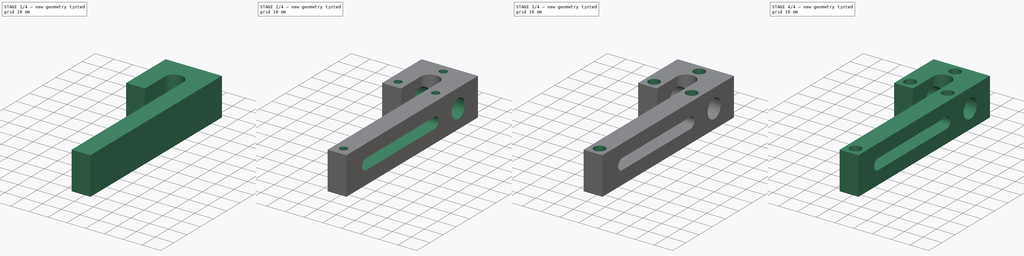
[diagram: build sequence overview — one tinted view per stage of 4, left to right]
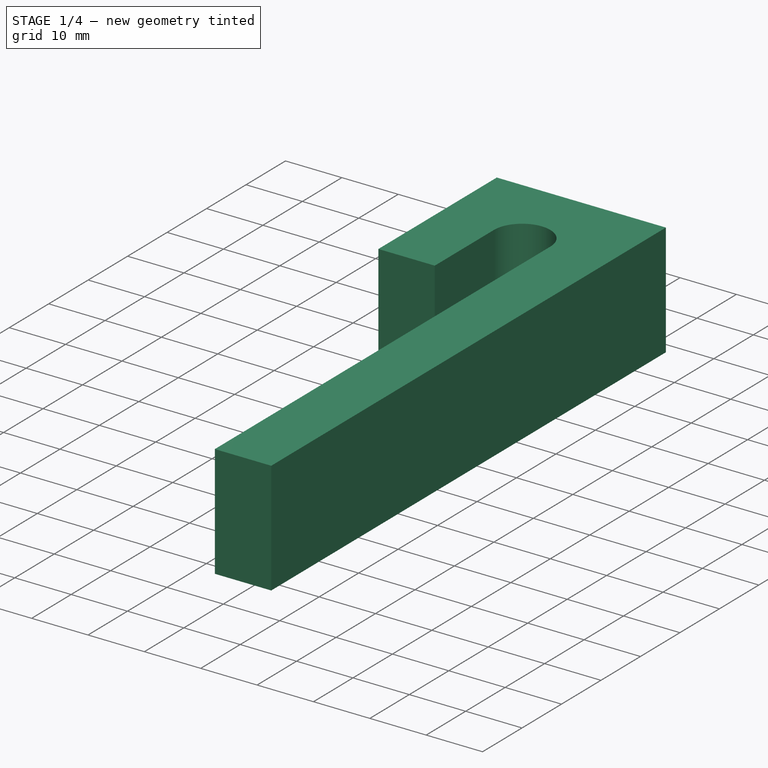
[diagram: stage 1 of 4 — iso view after this stage's code; geometry added in this stage tinted green]
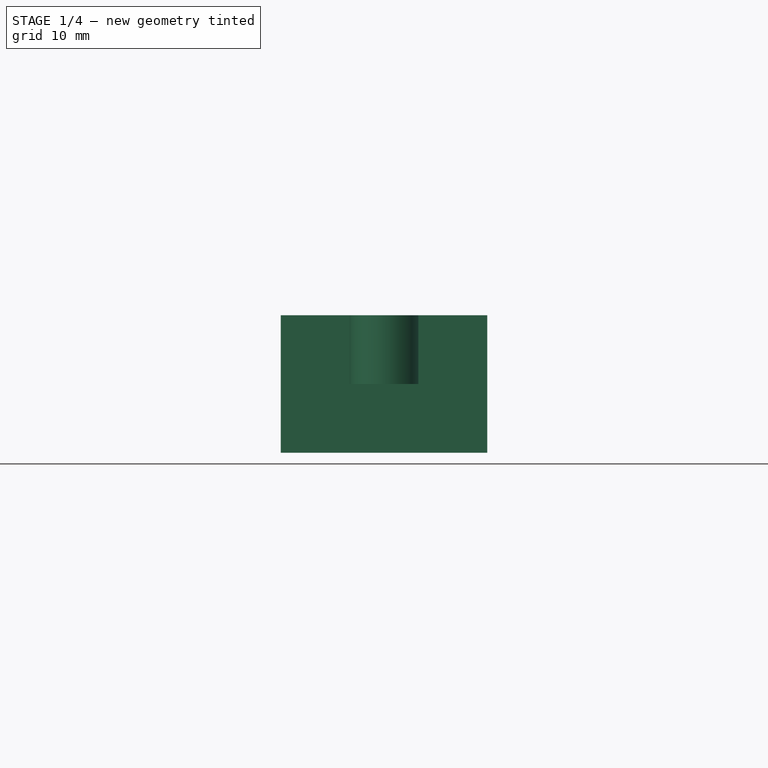
[diagram: stage 1 of 4 — front view after this stage's code; geometry added in this stage tinted green]
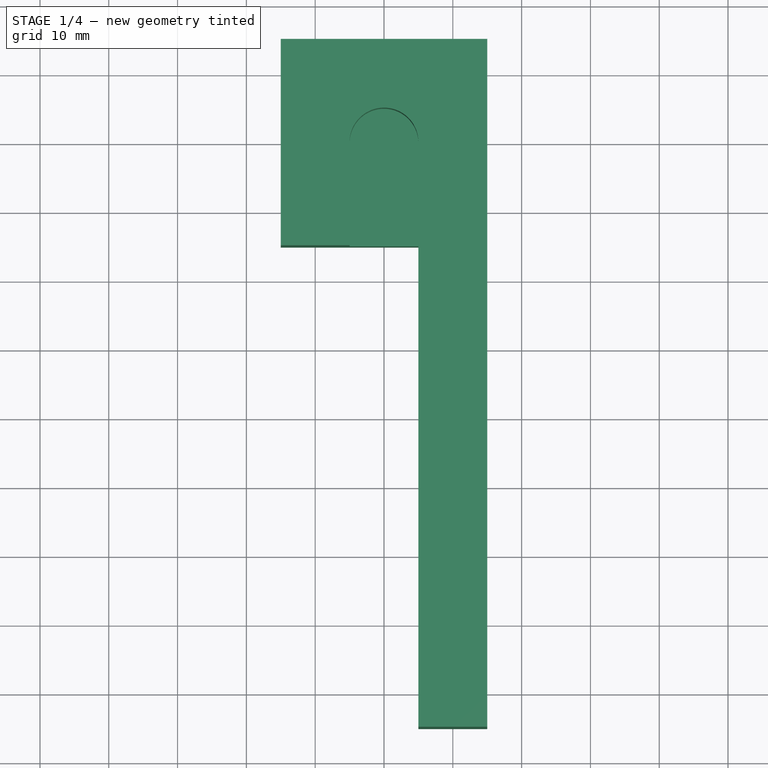
[diagram: stage 1 of 4 — top view after this stage's code; geometry added in this stage tinted green]
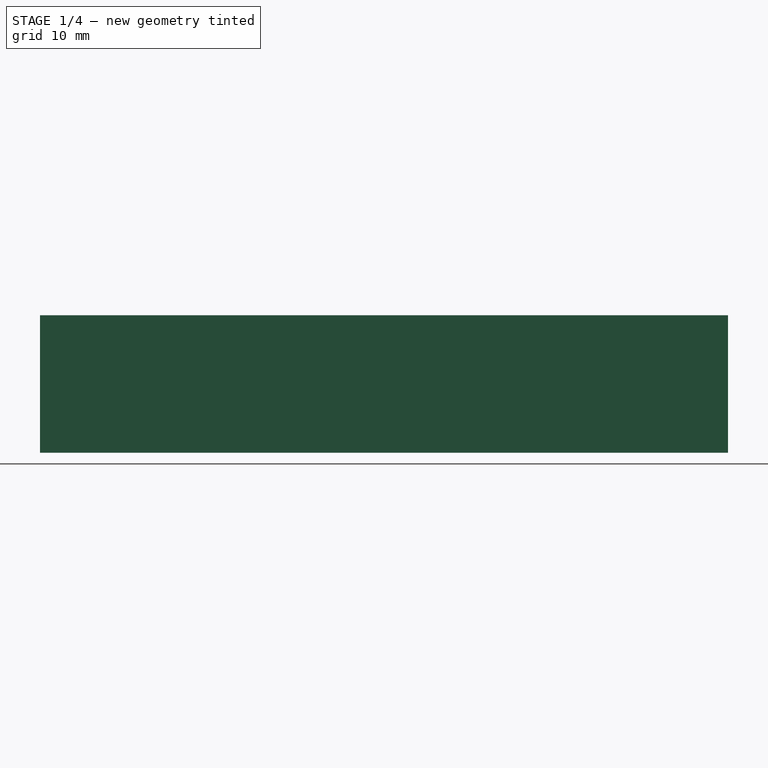
[diagram: stage 1 of 4 — right view after this stage's code; geometry added in this stage tinted green]
FCSTD DOCUMENT  (FreeCAD 0.21R33694 (Git))
Label: gamma-match-node
License: All rights reserved
LicenseURL: https://en.wikipedia.org/wiki/All_rights_reserved
objects: Sketcher::SketchObject×7, PartDesign::Pocket×5, PartDesign::Plane×3, Part::FeaturePython×3, PartDesign::Pad×1, PartDesign::Body×1, App::DocumentObjectGroup×1
note: 26 computed .brp shape members not serialized (recipe doc carries the construction recipe); baked Part::Feature solids carry a one-line shape summary decoded from their .brp

FEATURE [Sketcher::SketchObject] Sketch  label="Master XY"
  FullyConstrained = true
  MapMode = 5
  Support = -> [XY_Plane]
  sketch-geometry (19):
    g0: LineSegment StartX=-15 StartY=-15 StartZ=0 EndX=-15 EndY=15 EndZ=0
    g1: LineSegment StartX=-15 StartY=15 StartZ=0 EndX=15 EndY=15 EndZ=0
    g2: LineSegment StartX=15 StartY=15 StartZ=0 EndX=15 EndY=-85 EndZ=0
    g3: LineSegment StartX=15 StartY=-85 StartZ=0 EndX=5 EndY=-85 EndZ=0
    g4: LineSegment StartX=5 StartY=-85 StartZ=0 EndX=5 EndY=-15 EndZ=0
    g5: LineSegment StartX=-100 StartY=5 StartZ=0 EndX=100 EndY=5 EndZ=0
    g6: LineSegment StartX=100 StartY=5 StartZ=0 EndX=100 EndY=-5 EndZ=0
    g7: LineSegment StartX=100 StartY=-5 StartZ=0 EndX=-100 EndY=-5 EndZ=0
    g8: LineSegment StartX=-100 StartY=-5 StartZ=0 EndX=-100 EndY=5 EndZ=0
    g9: Circle CenterX=0 CenterY=10 CenterZ=0 NormalX=0 NormalY=0 NormalZ=1 AngleXU=0 Radius=2
    g10: Circle CenterX=10 CenterY=-10 CenterZ=0 NormalX=0 NormalY=0 NormalZ=1 AngleXU=0 Radius=2
    g11: ArcOfCircle CenterX=-2.301e-13 CenterY=-2.306e-13 CenterZ=0 NormalX=0 NormalY=0 NormalZ=1 AngleXU=0 Radius=5 StartAngle=4.61e-14 EndAngle=3.14159
    g12: LineSegment StartX=-5 StartY=9e-16 StartZ=0 EndX=-5 EndY=-15 EndZ=0
    g13: LineSegment StartX=5 StartY=-1e-16 StartZ=0 EndX=5 EndY=-15 EndZ=0
    g14: Circle CenterX=-10 CenterY=-10 CenterZ=0 NormalX=0 NormalY=0 NormalZ=1 AngleXU=0 Radius=2
    g15: LineSegment StartX=-15 StartY=-15 StartZ=0 EndX=-5 EndY=-15 EndZ=0
    g16: LineSegment StartX=-5 StartY=-15 StartZ=0 EndX=5 EndY=-15 EndZ=0
    g17: LineSegment StartX=5 StartY=-15 StartZ=0 EndX=5 EndY=-15 EndZ=0
    g18: Circle CenterX=10 CenterY=-80 CenterZ=0 NormalX=0 NormalY=0 NormalZ=1 AngleXU=0 Radius=2
  constraints (53):
    c: Coincident(g0,g1)
    c: Coincident(g1,g2)
    c: Vertical(g2)
    c: Coincident(g2,g3)
    c: Horizontal(g3)
    c: Coincident(g3,g4)
    c: Vertical(g4)
    c: Symmetric(g0,g0,g-1)
    c: Symmetric(g0,g1,g-2)
    c: Coincident(g5,g6)
    c: Coincident(g6,g7)
    c: Coincident(g7,g8)
    c: Coincident(g8,g5)
    c: Horizontal(g5)
    c: Horizontal(g7)
    c: Vertical(g6)
    c: Vertical(g8)
    c: DistanceY(g6,g6) = 10
    c: Symmetric(g5,g7,g-1)
    c: DistanceX(g5,g5) = 200
    c: DistanceX(g3,g3) = 10
    c: DistanceY(g4,g4) = 70
    c: Diameter(g9) = 4
    c: DistanceY(g9,g0) = 5
    c: DistanceY(g5,g9) = 5
    c: Equal(g10,g9)
    c: DistanceY(g4,g10) = 5
    c: DistanceX(g10,g1) = 5
    c: Coincident(g11,g-1)
    c: PointOnObject(g11,g-1)
    c: PointOnObject(g11,g-1)
    c: Tangent(g11,g5)
    c: Coincident(g12,g11)
    c: Vertical(g12)
    c: Coincident(g13,g11)
    c: Vertical(g13)
    c: PointOnObject(g9,g-2)
    c: Equal(g14,g9)
    c: DistanceX(g0,g14) = 5
    c: DistanceX(g14,g12) = 5
    c: Coincident(g15,g0)
    c: Coincident(g15,g12)
    c: Horizontal(g15)
    c: Coincident(g16,g12)
    c: Coincident(g16,g13)
    c: Horizontal(g16)
    c: Coincident(g17,g4)
    c: Coincident(g17,g13)
    c: Horizontal(g17)
    c: Equal(g18,g9)
    c: DistanceY(g3,g18) = 5
    c: Vertical(g18,g10)
    c: DistanceY(g14,g7) = 5
FEATURE [Sketcher::SketchObject] Sketch001
  ExternalGeometry = -> [Sketch]
  FullyConstrained = true
  MapMode = 5
  Support = -> [XY_Plane]
  sketch-geometry (7):
    g0: LineSegment StartX=-15 StartY=15 StartZ=0 EndX=15 EndY=15 EndZ=0
    g1: LineSegment StartX=15 StartY=15 StartZ=0 EndX=15 EndY=-85 EndZ=0
    g2: LineSegment StartX=15 StartY=-85 StartZ=0 EndX=5 EndY=-85 EndZ=0
    g3: LineSegment StartX=5 StartY=-85 StartZ=0 EndX=5 EndY=-15 EndZ=0
    g4: LineSegment StartX=5 StartY=-15 StartZ=0 EndX=-5 EndY=-15 EndZ=0
    g5: LineSegment StartX=-15 StartY=15 StartZ=0 EndX=-15 EndY=-15 EndZ=0
    g6: LineSegment StartX=-15 StartY=-15 StartZ=0 EndX=-5 EndY=-15 EndZ=0
  constraints (14):
    c: Coincident(g-7,g0)
    c: Coincident(g0,g-7)
    c: Coincident(g0,g1)
    c: Coincident(g1,g-6)
    c: Coincident(g1,g2)
    c: Coincident(g2,g-5)
    c: Coincident(g2,g3)
    c: Coincident(g3,g-8)
    c: Coincident(g3,g4)
    c: Coincident(g4,g-9)
    c: Coincident(g0,g5)
    c: Coincident(g5,g-12)
    c: Coincident(g5,g6)
    c: Coincident(g6,g4)
FEATURE [Sketcher::SketchObject] Sketch002
  ExternalGeometry = -> [Sketch]
  FullyConstrained = true
  MapMode = 5
  Support = -> [XY_Plane]
  sketch-geometry (4):
    g0: LineSegment StartX=-5 StartY=9e-16 StartZ=0 EndX=-5 EndY=-15 EndZ=0
    g1: LineSegment StartX=5 StartY=-15 StartZ=0 EndX=-5 EndY=-15 EndZ=0
    g2: LineSegment StartX=5 StartY=-15 StartZ=0 EndX=5 EndY=0 EndZ=0
    g3: ArcOfCircle CenterX=-2.301e-13 CenterY=-2.306e-13 CenterZ=0 NormalX=0 NormalY=0 NormalZ=1 AngleXU=0 Radius=5 StartAngle=4.61e-14 EndAngle=3.14159
  constraints (9):
    c: Coincident(g0,g-9)
    c: Coincident(g0,g-10)
    c: Coincident(g1,g-10)
    c: Coincident(g1,g0)
    c: Coincident(g2,g1)
    c: Coincident(g2,g-8)
    c: Coincident(g3,g-7)
    c: Coincident(g3,g0)
    c: Coincident(g3,g2)
FEATURE [Sketcher::SketchObject] Sketch003
  ExternalGeometry = -> [Sketch]
  FullyConstrained = true
  MapMode = 5
  Placement = pos=(0,0,0) rot=(0.57735,0.57735,0.57735;2.0944rad)
  Support = -> [YZ_Plane]
  sketch-geometry (6):
    g0: Circle CenterX=0 CenterY=0 CenterZ=0 NormalX=0 NormalY=0 NormalZ=1 AngleXU=0 Radius=5
    g1: ArcOfCircle CenterX=-17.9 CenterY=-3.6e-15 CenterZ=0 NormalX=0 NormalY=0 NormalZ=1 AngleXU=0 Radius=2.9 StartAngle=4.71239 EndAngle=7.85398
    g2: ArcOfCircle CenterX=-70.1 CenterY=-1.81e-14 CenterZ=0 NormalX=0 NormalY=0 NormalZ=1 AngleXU=0 Radius=2.9 StartAngle=1.5708 EndAngle=4.71239
    g3: LineSegment StartX=-70.1 StartY=2.9 StartZ=0 EndX=-17.9 EndY=2.9 EndZ=0
    g4: LineSegment StartX=-17.9 StartY=-2.9 StartZ=0 EndX=-70.1 EndY=-2.9 EndZ=0
    g5: LineSegment StartX=-78 StartY=-2.44e-14 StartZ=0 EndX=-73 EndY=-2.44e-14 EndZ=0
  constraints (19):
    c: Coincident(g0,g-1)
    c: Diameter(g0) = 10
    c: PointOnObject(g1,g-3)
    c: PointOnObject(g-3,g1)
    c: Radius(g1) = 2.9
    c: Vertical(g1,g1)
    c: Vertical(g1,g1)
    c: PointOnObject(g2,g-3)
    c: Equal(g2,g1)
    c: Vertical(g2,g2)
    c: Vertical(g2,g2)
    c: Coincident(g3,g2)
    c: Coincident(g3,g1)
    c: Coincident(g4,g1)
    c: Coincident(g2,g4)
    c: Coincident(g5,g-4)
    c: PointOnObject(g5,g2)
    c: Horizontal(g5)
    c: DistanceX(g5,g5) = 5
FEATURE [Sketcher::SketchObject] Sketch004
  ExternalGeometry = -> [Sketch]
  FullyConstrained = true
  MapMode = 5
  Support = -> [XY_Plane]
  sketch-geometry (4):
    g0: Circle CenterX=0 CenterY=10 CenterZ=0 NormalX=0 NormalY=0 NormalZ=1 AngleXU=0 Radius=2
    g1: Circle CenterX=-10 CenterY=-10 CenterZ=0 NormalX=0 NormalY=0 NormalZ=1 AngleXU=0 Radius=2
    g2: Circle CenterX=10 CenterY=-10 CenterZ=0 NormalX=0 NormalY=0 NormalZ=1 AngleXU=0 Radius=2
    g3: Circle CenterX=10 CenterY=-80 CenterZ=0 NormalX=0 NormalY=0 NormalZ=1 AngleXU=0 Radius=2
  constraints (8):
    c: Coincident(g0,g-3)
    c: Coincident(g1,g-5)
    c: Coincident(g2,g-4)
    c: Coincident(g3,g-6)
    c: Equal(g3,g-6)
    c: Equal(g2,g-4)
    c: Equal(g1,g-5)
    c: Equal(g0,g-3)
FEATURE [PartDesign::Plane] DatumPlane
  Length = 60
  MapMode = 5
  Placement = pos=(0,0,10) rot=(0,0,1;0rad)
  ResizeMode = 0
  Width = 60
FEATURE [Sketcher::SketchObject] Sketch005
  ExternalGeometry = -> [Sketch]
  FullyConstrained = true
  MapMode = 5
  Placement = pos=(0,0,10) rot=(0,0,1;0rad)
  Support = -> [DatumPlane]
  sketch-geometry (4):
    g0: Circle CenterX=0 CenterY=10 CenterZ=0 NormalX=0 NormalY=0 NormalZ=1 AngleXU=0 Radius=3
    g1: Circle CenterX=-10 CenterY=-10 CenterZ=0 NormalX=0 NormalY=0 NormalZ=1 AngleXU=0 Radius=3
    g2: Circle CenterX=10 CenterY=-10 CenterZ=0 NormalX=0 NormalY=0 NormalZ=1 AngleXU=0 Radius=3
    g3: Circle CenterX=10 CenterY=-80 CenterZ=0 NormalX=0 NormalY=0 NormalZ=1 AngleXU=0 Radius=3
  constraints (8):
    c: Coincident(g0,g-3)
    c: Coincident(g1,g-4)
    c: Coincident(g2,g-5)
    c: Coincident(g3,g-6)
    c: Equal(g0,g1)
    c: Equal(g1,g2)
    c: Equal(g2,g3)
    c: Diameter(g0) = 6
FEATURE [PartDesign::Plane] DatumPlane001
  Length = 60
  MapMode = 5
  Placement = pos=(0,0,-10) rot=(1,0,0;3.14159rad)
  ResizeMode = 0
  Width = 60
FEATURE [Sketcher::SketchObject] Sketch006
  ExternalGeometry = -> [Sketch]
  FullyConstrained = true
  MapMode = 5
  Placement = pos=(0,0,-10) rot=(1,0,0;3.14159rad)
  Support = -> [DatumPlane001]
  sketch-geometry (28):
    g0: LineSegment StartX=-7 StartY=8.26795 StartZ=0 EndX=-7 EndY=11.7321 EndZ=0
    g1: LineSegment StartX=-7 StartY=11.7321 StartZ=0 EndX=-10 EndY=13.4641 EndZ=0
    g2: LineSegment StartX=-10 StartY=13.4641 StartZ=0 EndX=-13 EndY=11.7321 EndZ=0
    g3: LineSegment StartX=-13 StartY=11.7321 StartZ=0 EndX=-13 EndY=8.26795 EndZ=0
    g4: LineSegment StartX=-13 StartY=8.26795 StartZ=0 EndX=-10 EndY=6.5359 EndZ=0
    g5: LineSegment StartX=-10 StartY=6.5359 StartZ=0 EndX=-7 EndY=8.26795 EndZ=0
    g6: Circle CenterX=-10 CenterY=10 CenterZ=0 NormalX=0 NormalY=0 NormalZ=1 AngleXU=0 Radius=3.4641
    g7: LineSegment StartX=13 StartY=8.26795 StartZ=0 EndX=13 EndY=11.7321 EndZ=0
    g8: LineSegment StartX=13 StartY=11.7321 StartZ=0 EndX=10 EndY=13.4641 EndZ=0
    g9: LineSegment StartX=10 StartY=13.4641 StartZ=0 EndX=7 EndY=11.7321 EndZ=0
    g10: LineSegment StartX=7 StartY=11.7321 StartZ=0 EndX=7 EndY=8.26795 EndZ=0
    g11: LineSegment StartX=7 StartY=8.26795 StartZ=0 EndX=10 EndY=6.5359 EndZ=0
    g12: LineSegment StartX=10 StartY=6.5359 StartZ=0 EndX=13 EndY=8.26795 EndZ=0
    g13: Circle CenterX=10 CenterY=10 CenterZ=0 NormalX=0 NormalY=0 NormalZ=1 AngleXU=0 Radius=3.4641
    g14: LineSegment StartX=3 StartY=-11.7321 StartZ=0 EndX=3 EndY=-8.26795 EndZ=0
    g15: LineSegment StartX=3 StartY=-8.26795 StartZ=0 EndX=0 EndY=-6.5359 EndZ=0
    g16: LineSegment StartX=0 StartY=-6.5359 StartZ=0 EndX=-3 EndY=-8.26795 EndZ=0
    g17: LineSegment StartX=-3 StartY=-8.26795 StartZ=0 EndX=-3 EndY=-11.7321 EndZ=0
    g18: LineSegment StartX=-3 StartY=-11.7321 StartZ=0 EndX=0 EndY=-13.4641 EndZ=0
    g19: LineSegment StartX=0 StartY=-13.4641 StartZ=0 EndX=3 EndY=-11.7321 EndZ=0
    g20: Circle CenterX=0 CenterY=-10 CenterZ=0 NormalX=0 NormalY=0 NormalZ=1 AngleXU=0 Radius=3.4641
    g21: LineSegment StartX=13 StartY=78.2679 StartZ=0 EndX=13 EndY=81.7321 EndZ=0
    g22: LineSegment StartX=13 StartY=81.7321 StartZ=0 EndX=10 EndY=83.4641 EndZ=0
    g23: LineSegment StartX=10 StartY=83.4641 StartZ=0 EndX=7 EndY=81.7321 EndZ=0
    g24: LineSegment StartX=7 StartY=81.7321 StartZ=0 EndX=7 EndY=78.2679 EndZ=0
    g25: LineSegment StartX=7 StartY=78.2679 StartZ=0 EndX=10 EndY=76.5359 EndZ=0
    g26: LineSegment StartX=10 StartY=76.5359 StartZ=0 EndX=13 EndY=78.2679 EndZ=0
    g27: Circle CenterX=10 CenterY=80 CenterZ=0 NormalX=0 NormalY=0 NormalZ=1 AngleXU=0 Radius=3.4641
  constraints (64):
    c: Coincident(g0,g1)
    c: Coincident(g1,g2)
    c: Coincident(g2,g3)
    c: Coincident(g3,g4)
    c: Coincident(g4,g5)
    c: Coincident(g5,g0)
    c: Equal(g0, g1-g5) x5
    c: PointOnObject(g0,g6)
    c: PointOnObject(g1,g6)
    c: PointOnObject(g2,g6)
    c: PointOnObject(g3,g6)
    c: PointOnObject(g4,g6)
    c: PointOnObject(g5,g6)
    c: Coincident(g6,g-4)
    c: Coincident(g7,g8)
    c: Coincident(g8,g9)
    c: Coincident(g9,g10)
    c: Coincident(g10,g11)
    c: Coincident(g11,g12)
    c: Coincident(g12,g7)
    c: Equal(g7, g8-g12) x5
    c: PointOnObject(g7,g13)
    c: PointOnObject(g8,g13)
    c: PointOnObject(g9,g13)
    c: PointOnObject(g10,g13)
    c: PointOnObject(g11,g13)
    c: PointOnObject(g12,g13)
    c: Coincident(g13,g-5)
    c: Coincident(g14,g15)
    c: Coincident(g15,g16)
    c: Coincident(g16,g17)
    c: Coincident(g17,g18)
    c: Coincident(g18,g19)
    c: Coincident(g19,g14)
    c: Equal(g14, g15-g19) x5
    c: PointOnObject(g14,g20)
    c: PointOnObject(g15,g20)
    c: PointOnObject(g16,g20)
    c: PointOnObject(g17,g20)
    c: PointOnObject(g18,g20)
    c: PointOnObject(g19,g20)
    c: Coincident(g20,g-6)
    c: Coincident(g21,g22)
    c: Coincident(g22,g23)
    c: Coincident(g23,g24)
    c: Coincident(g24,g25)
    c: Coincident(g25,g26)
    c: Coincident(g26,g21)
    c: Equal(g21, g22-g26) x5
    c: PointOnObject(g21,g27)
    c: PointOnObject(g22,g27)
    c: PointOnObject(g23,g27)
    c: PointOnObject(g24,g27)
    c: PointOnObject(g25,g27)
    c: PointOnObject(g26,g27)
    c: Coincident(g27,g-3)
    c: DistanceX(g24,g21) = 6
    c: Vertical(g24)
    c: Vertical(g10)
    c: Vertical(g3)
    c: Vertical(g17)
    c: Equal(g13,g27)
    c: Equal(g27,g6)
    c: Equal(g6,g20)
FEATURE [PartDesign::Plane] DatumPlane002
  Length = 60
  MapMode = 5
  ResizeMode = 0
  Support = -> [XY_Plane]
  Width = 60
FEATURE [PartDesign::Pad] Pad
  Direction = (0,0,1)
  Length = 20
  Length2 = 10
  Midplane = true
  Profile = -> Sketch001
  ReferenceAxis = -> Sketch001 [N_Axis]
  Type = 0
FEATURE [PartDesign::Pocket] Pocket
  BaseFeature = -> Pad
  Direction = (0,0,-1)
  Length = 5
  Length2 = 5
  Profile = -> Sketch002
  ReferenceAxis = -> Sketch002 [N_Axis]
  Reversed = true
  Type = 1
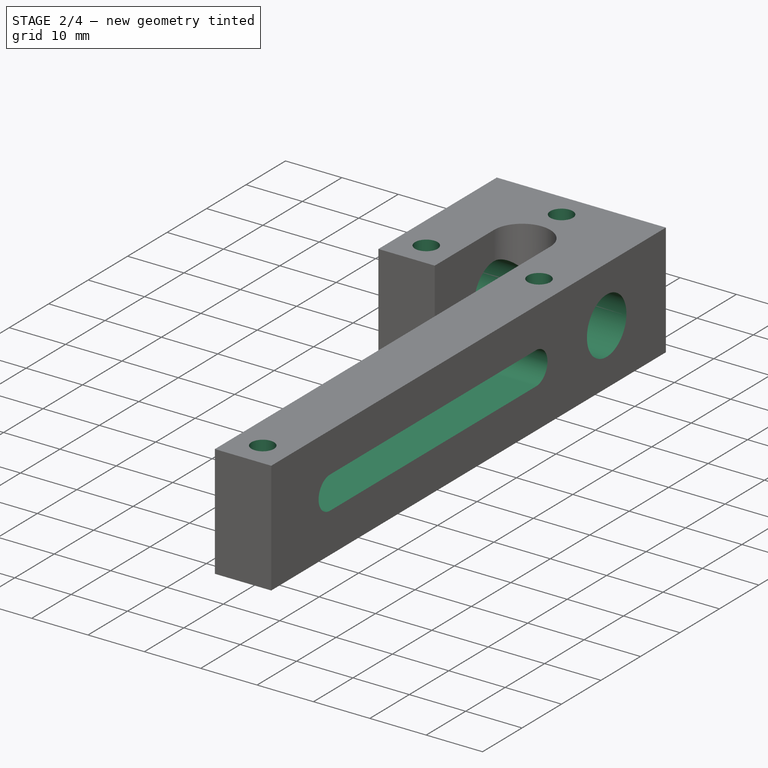
[diagram: stage 2 of 4 — iso view after this stage's code; geometry added in this stage tinted green]
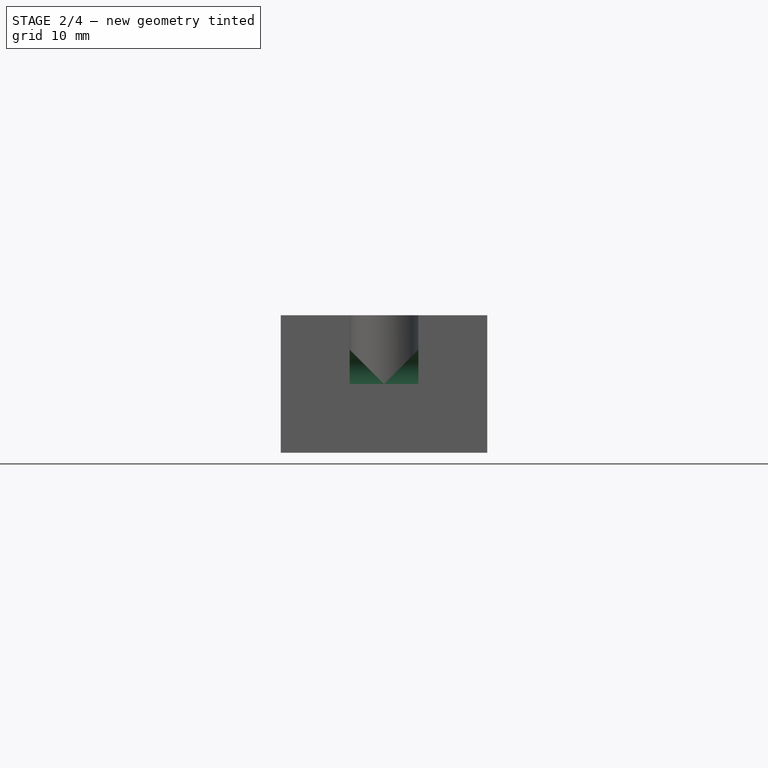
[diagram: stage 2 of 4 — front view after this stage's code; geometry added in this stage tinted green]
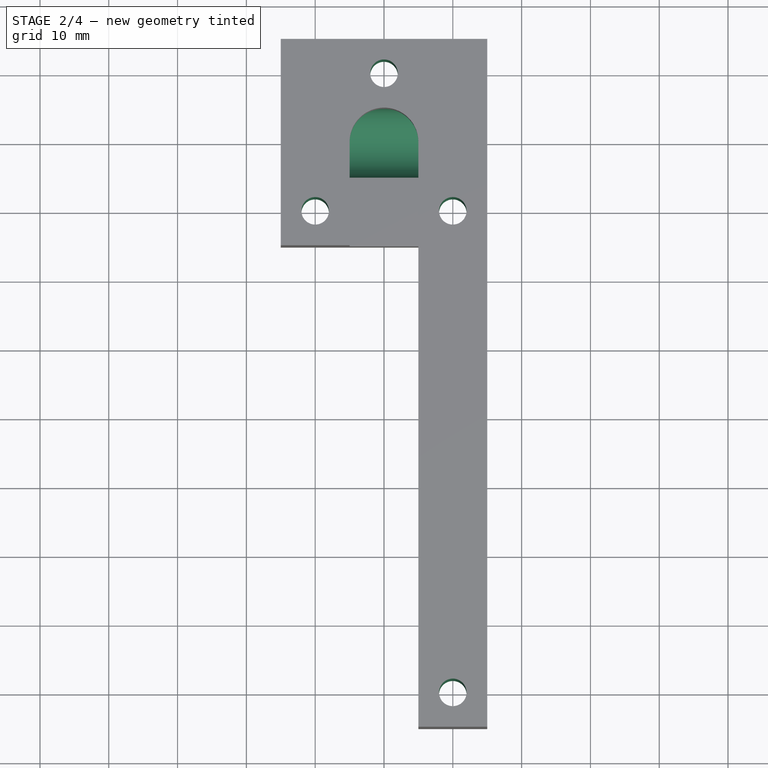
[diagram: stage 2 of 4 — top view after this stage's code; geometry added in this stage tinted green]
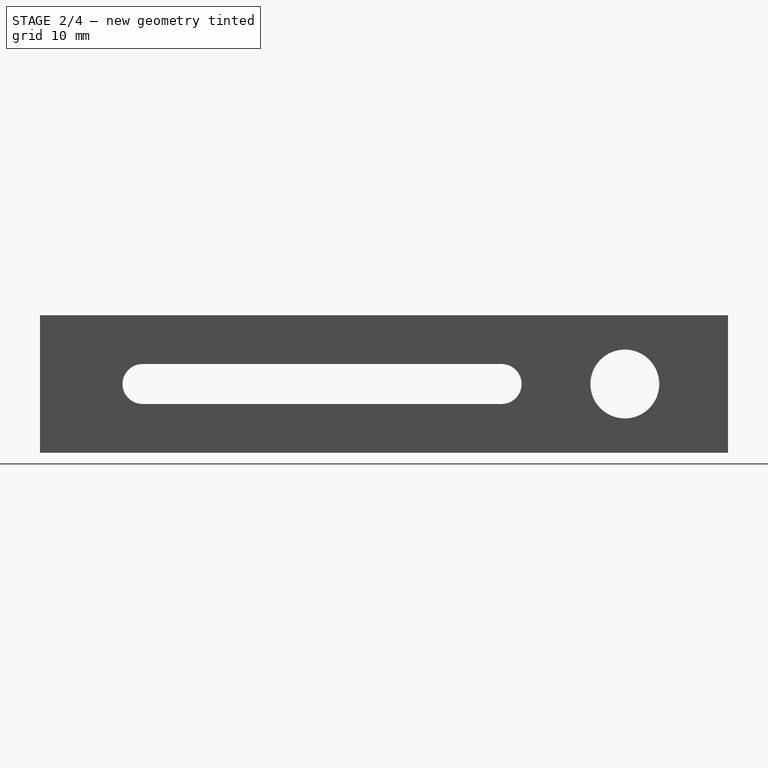
[diagram: stage 2 of 4 — right view after this stage's code; geometry added in this stage tinted green]
FEATURE [PartDesign::Pocket] Pocket001
  BaseFeature = -> Pocket
  Direction = (-1,2e-16,-3e-16)
  Length = 5
  Length2 = 5
  Midplane = true
  Profile = -> Sketch003
  ReferenceAxis = -> Sketch003 [N_Axis]
  Type = 1
FEATURE [PartDesign::Pocket] Pocket002
  BaseFeature = -> Pocket001
  Direction = (0,0,-1)
  Length = 5
  Length2 = 5
  Midplane = true
  Profile = -> Sketch004
  ReferenceAxis = -> Sketch004 [N_Axis]
  Type = 1
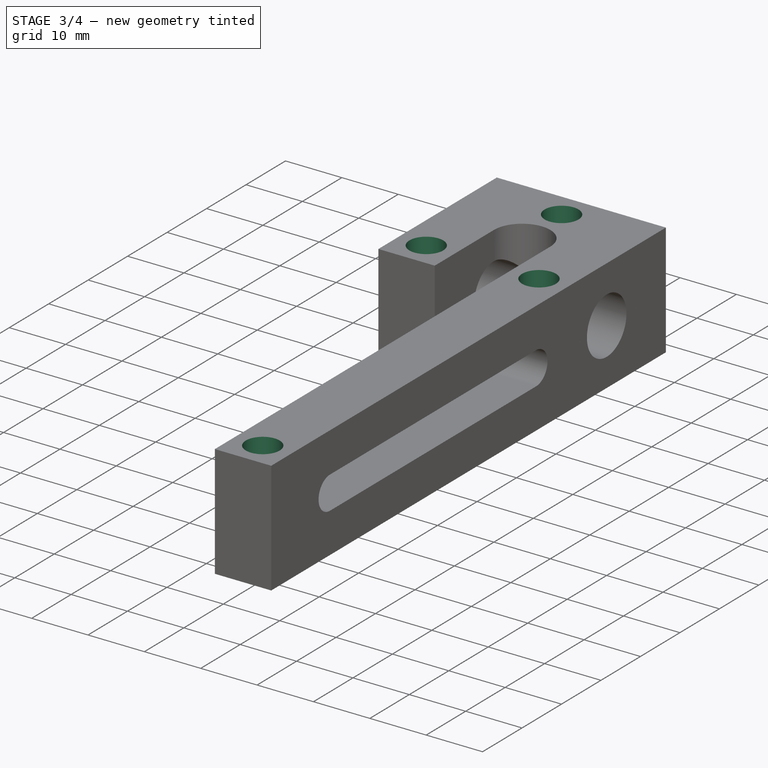
[diagram: stage 3 of 4 — iso view after this stage's code; geometry added in this stage tinted green]
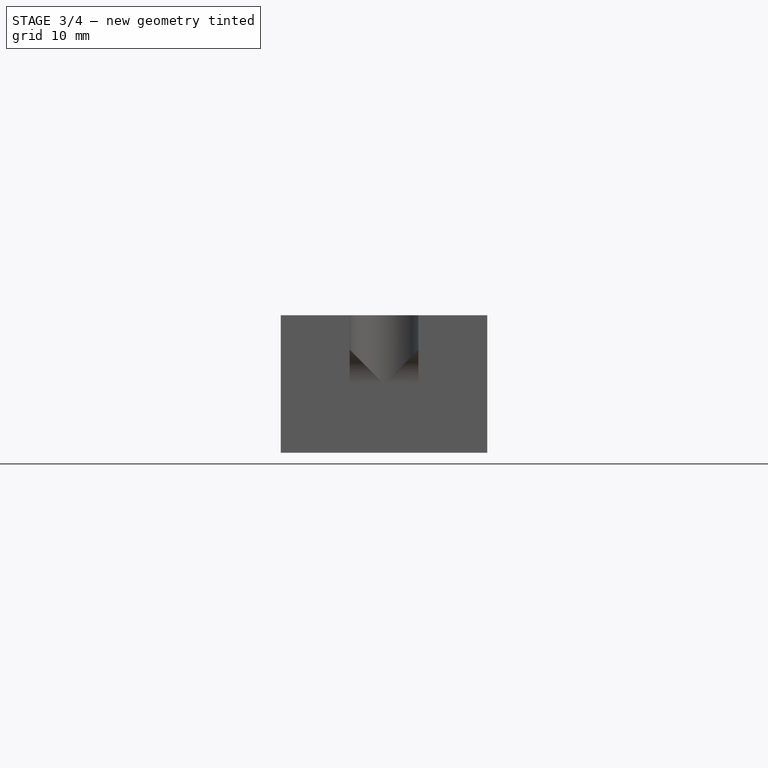
[diagram: stage 3 of 4 — front view after this stage's code; geometry added in this stage tinted green]
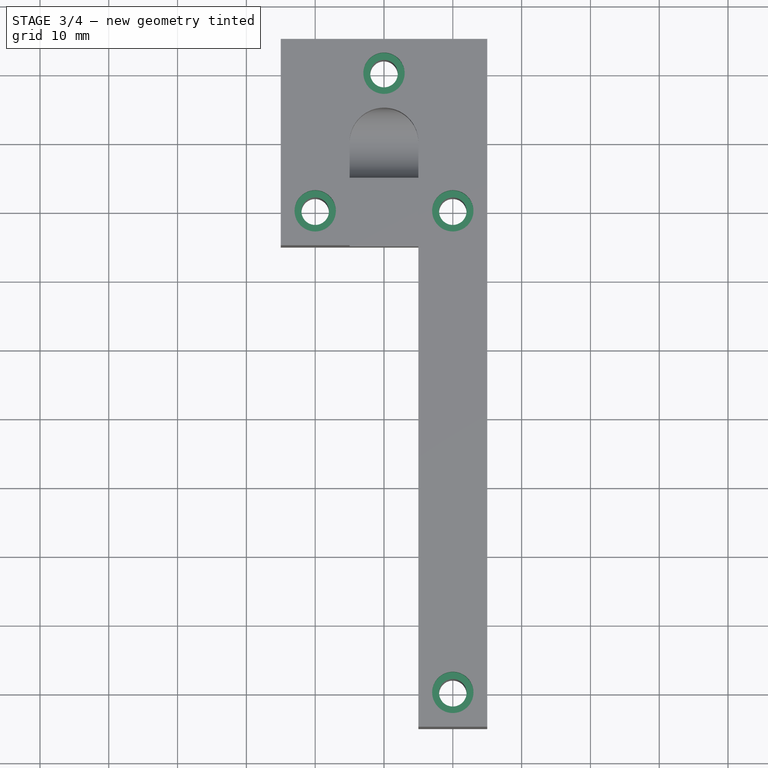
[diagram: stage 3 of 4 — top view after this stage's code; geometry added in this stage tinted green]
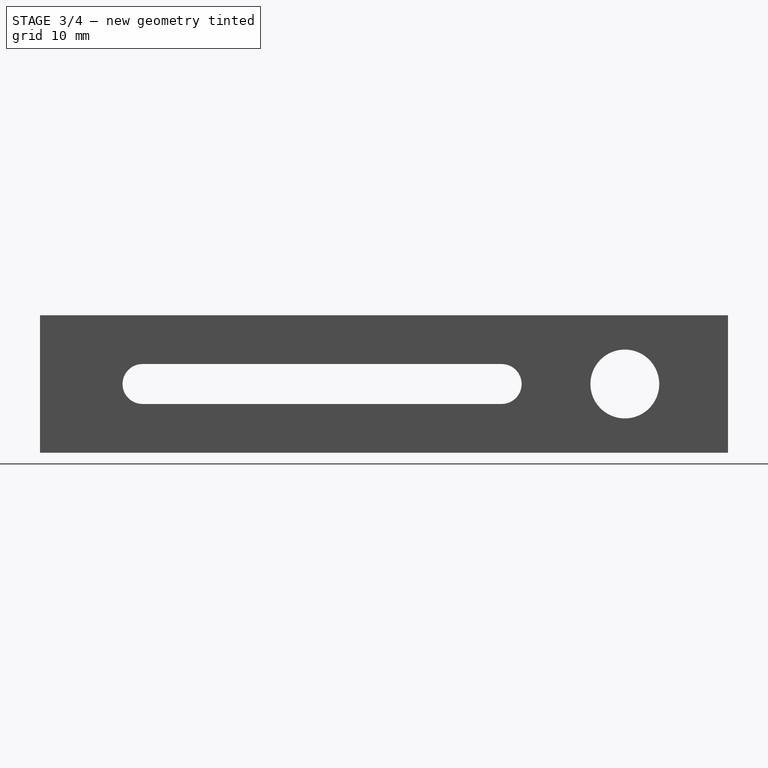
[diagram: stage 3 of 4 — right view after this stage's code; geometry added in this stage tinted green]
FEATURE [PartDesign::Pocket] Pocket003
  BaseFeature = -> Pocket002
  Direction = (0,0,-1)
  Length = 3
  Length2 = 5
  Profile = -> Sketch005
  ReferenceAxis = -> Sketch005 [N_Axis]
  Type = 0
FEATURE [PartDesign::Pocket] Pocket004
  BaseFeature = -> Pocket003
  Direction = (0,0,1)
  Length = 3
  Length2 = 5
  Profile = -> Sketch006
  ReferenceAxis = -> Sketch006 [N_Axis]
  Type = 0
FEATURE [PartDesign::Body] Body
  Group = -> [Sketch,Sketch001,Sketch002,Sketch003,Sketch004,Sketch005,DatumPlane,DatumPlane001,Sketch006,DatumPlane002,Pad,Pocket,Pocket001,Pocket002,Pocket003,Pocket004]
  Origin = -> Origin
  Tip = -> Pocket004
FEATURE [Part::FeaturePython] Slice  # WARN: FeaturePython — macro-defined, semantics opaque (R4)
  Base = -> Pocket004
  Mode = 1
  Tolerance = 0
  Tools = -> [DatumPlane002]
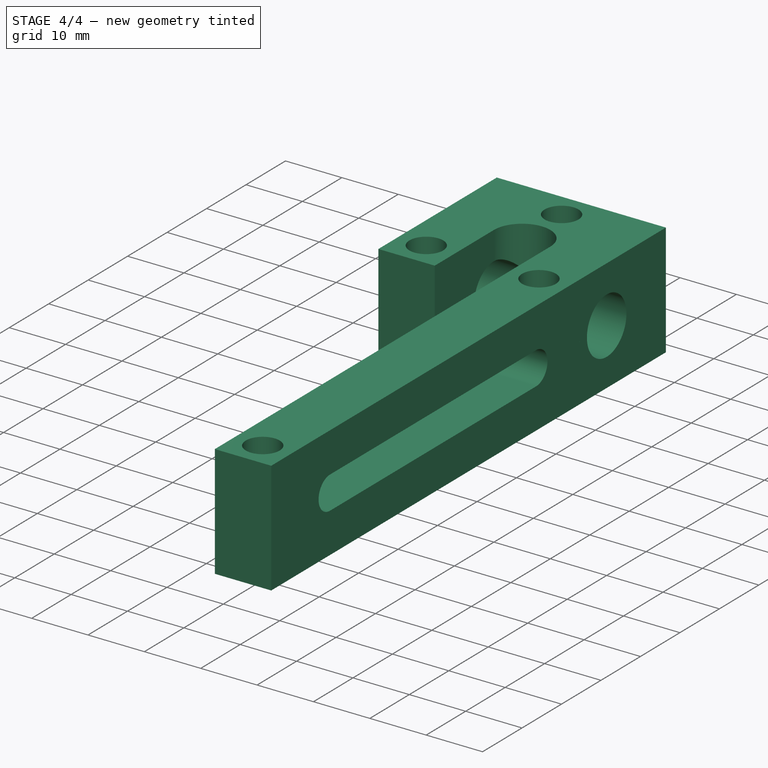
[diagram: stage 4 of 4 — iso view after this stage's code; geometry added in this stage tinted green]
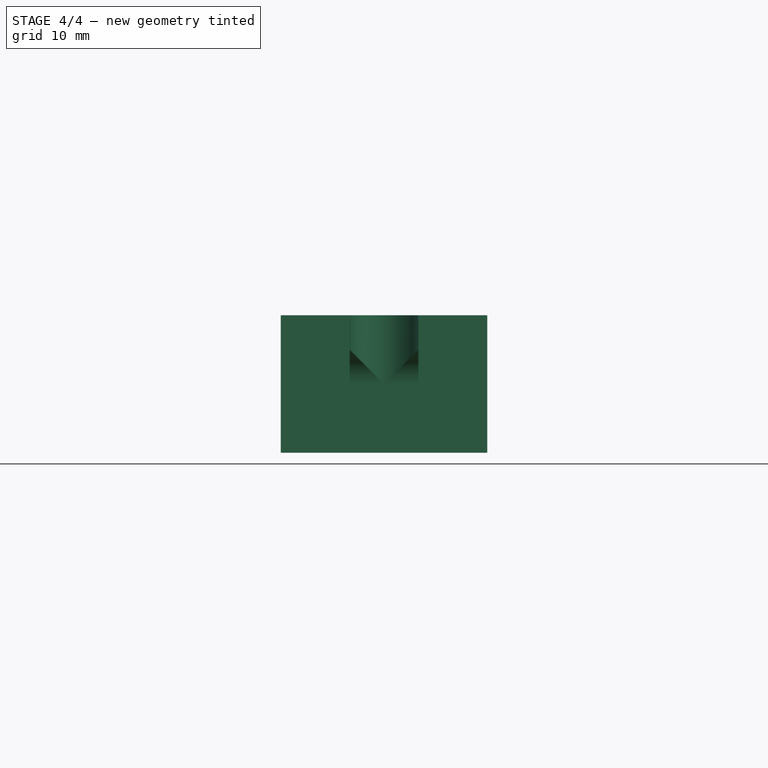
[diagram: stage 4 of 4 — front view after this stage's code; geometry added in this stage tinted green]
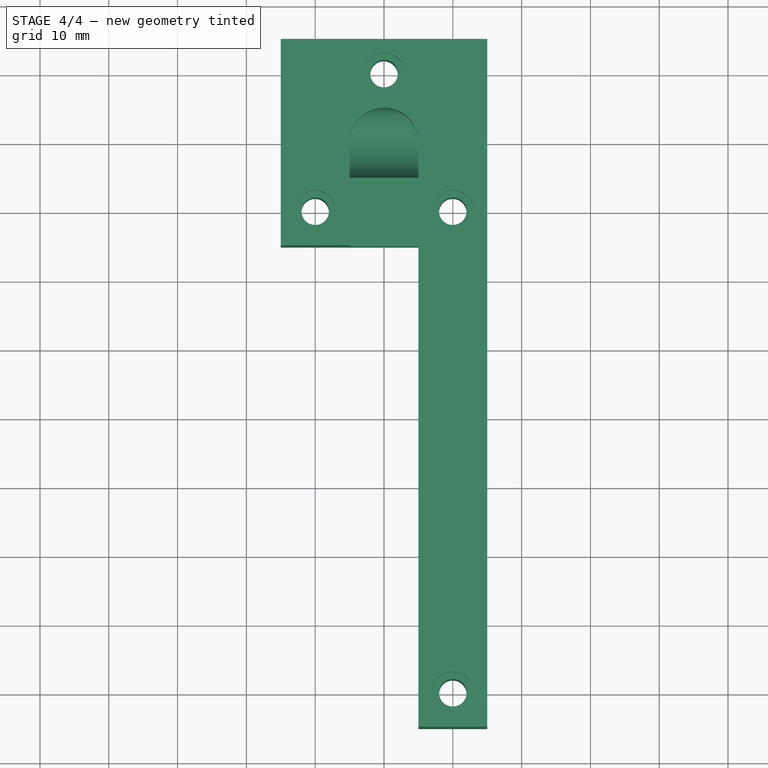
[diagram: stage 4 of 4 — top view after this stage's code; geometry added in this stage tinted green]
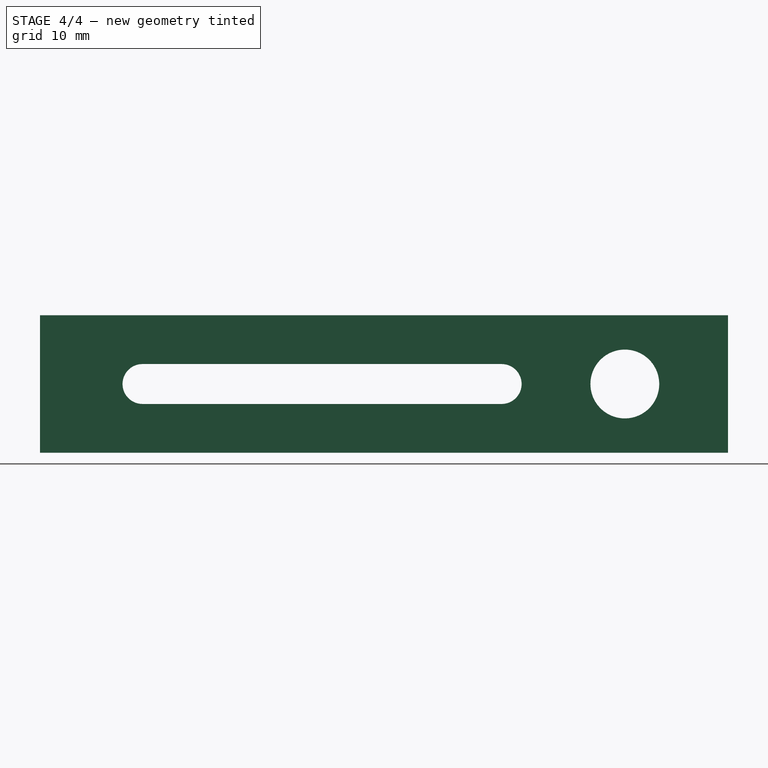
[diagram: stage 4 of 4 — right view after this stage's code; geometry added in this stage tinted green]
FEATURE [Part::FeaturePython] Slice_child0  label="Slice.0"  # WARN: FeaturePython — macro-defined, semantics opaque (R4)
  Base = -> Slice
  FilterType = 1
  Invert = false
  OverrideMaxVal = 0
  WindowFrom = 80
  WindowTo = 100
  items = 0
FEATURE [Part::FeaturePython] Slice_child1  label="Slice.1"  # WARN: FeaturePython — macro-defined, semantics opaque (R4)
  Base = -> Slice
  FilterType = 1
  Invert = false
  OverrideMaxVal = 0
  WindowFrom = 80
  WindowTo = 100
  items = 1
FEATURE [App::DocumentObjectGroup] GrExplode_Slice  label="Exploded Slice"
  Group = -> [Slice_child0,Slice_child1]
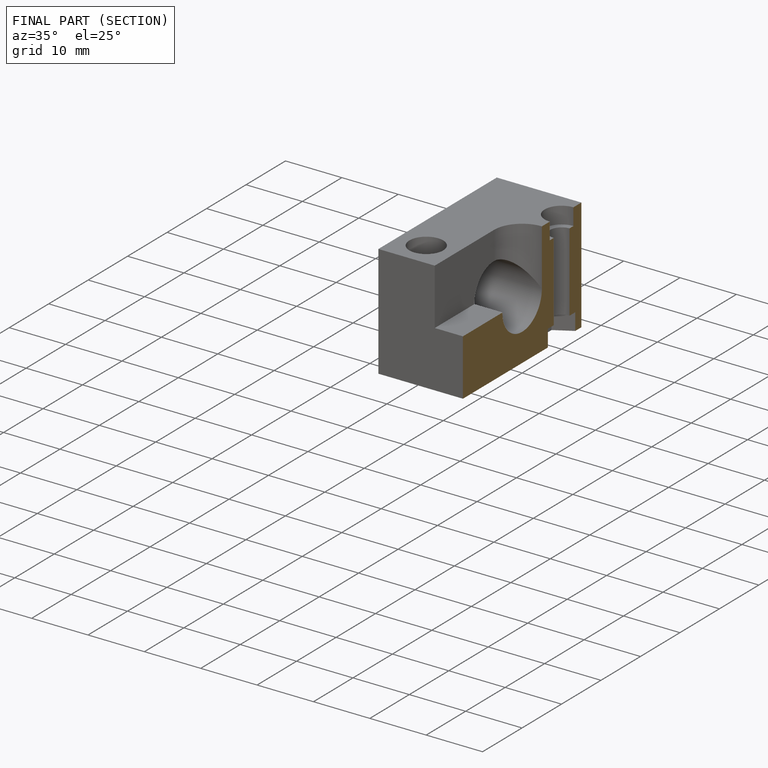
[diagram: finished part — half-section view (interior)]
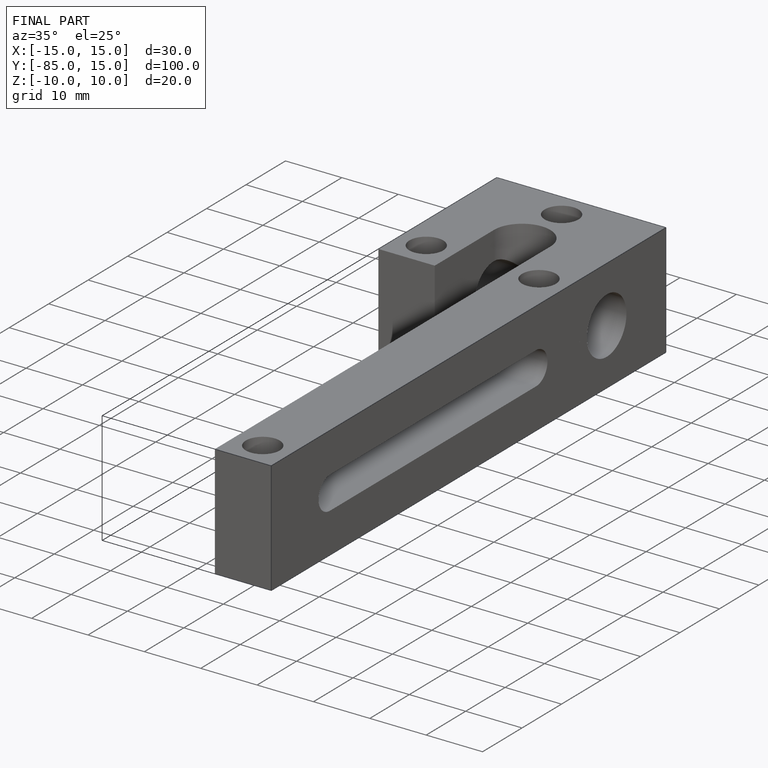
[diagram: finished part — iso view with bounding-box wireframe]
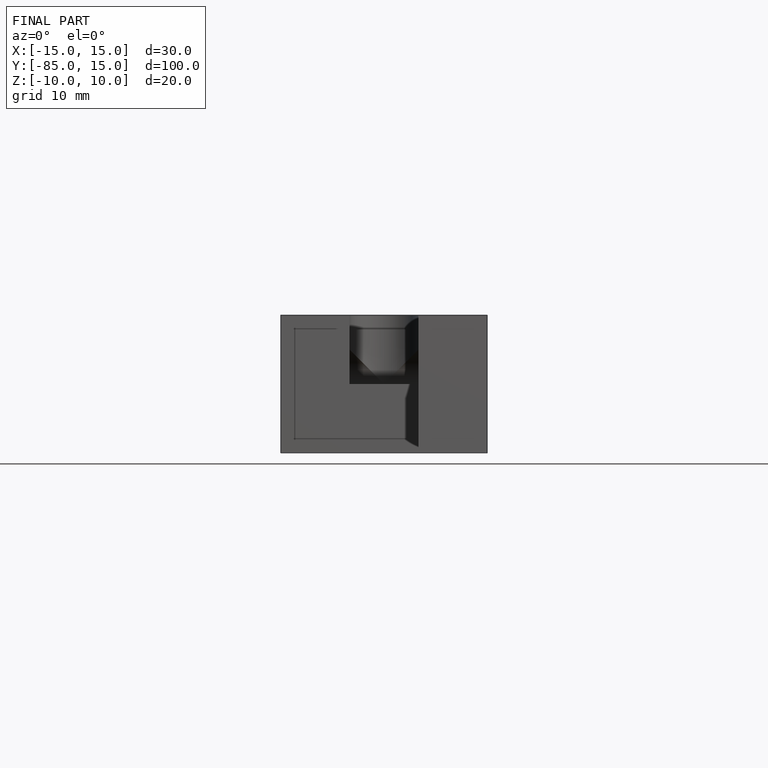
[diagram: finished part — front view with bounding-box wireframe]
